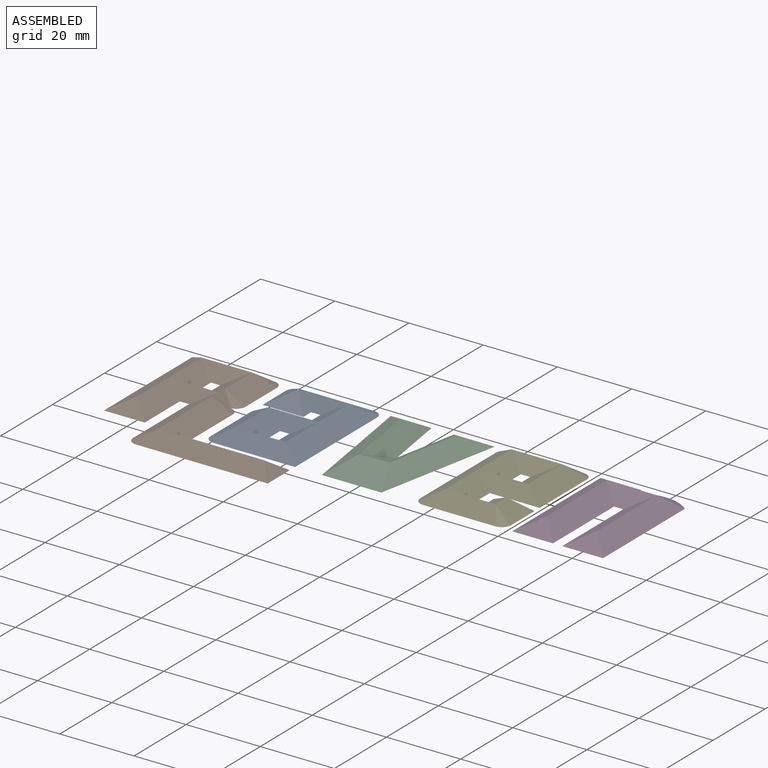
[diagram: assembled view]
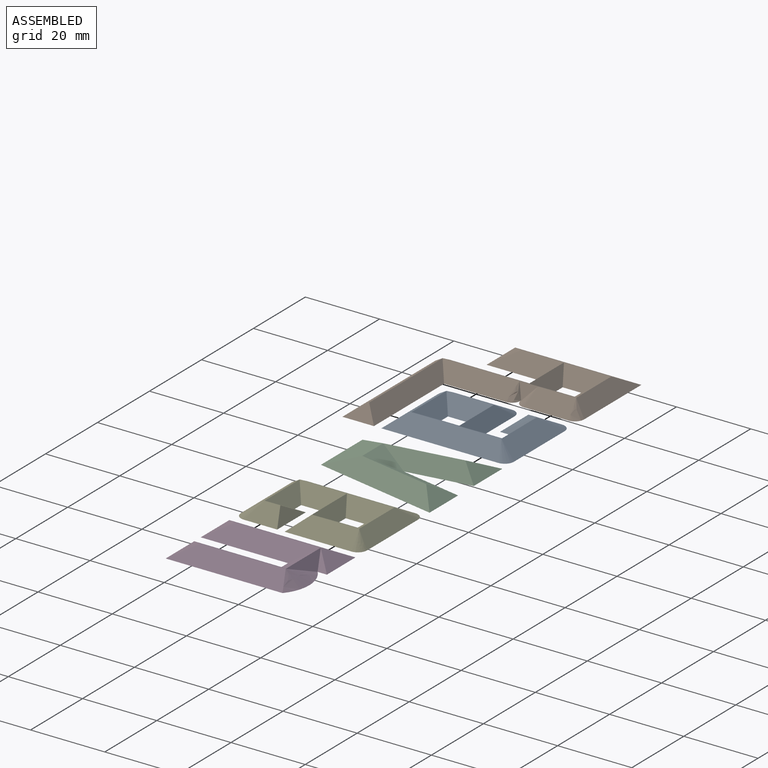
[diagram: assembled view, second angle]
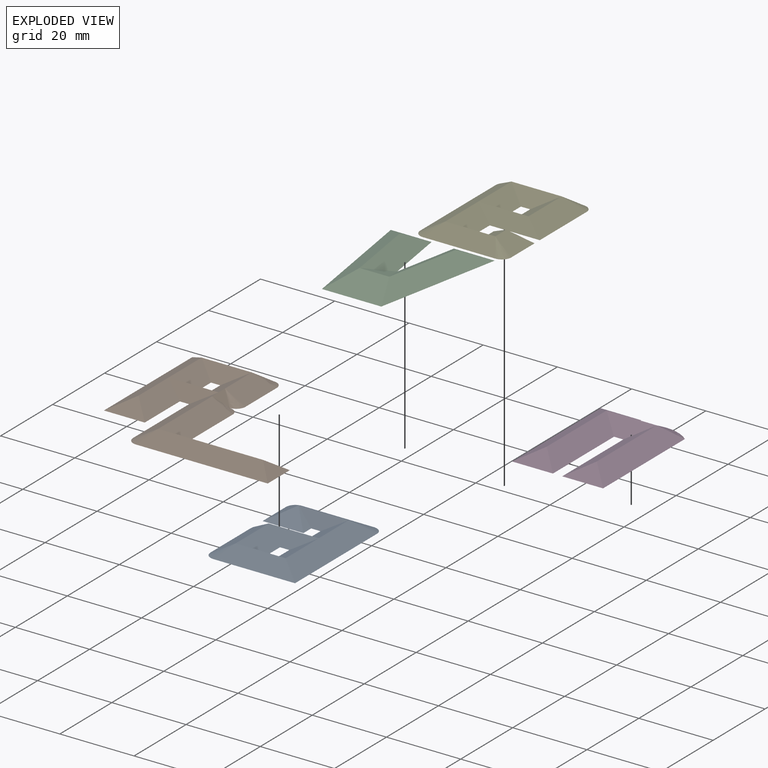
[diagram: exploded view]
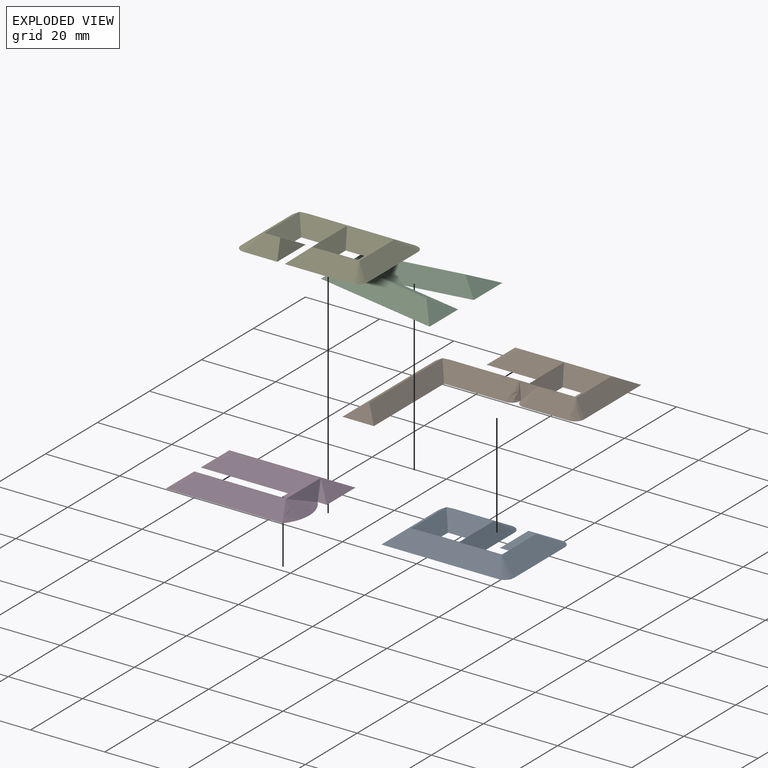
[diagram: exploded view, second angle]
ASSEMBLY  parts=5 mates=4
PART A: 19 faces, bbox 24.5x34x3 mm
  f0: plane 11.5x5.5mm, normal (-0.48,0,0.88), area 51.7mm2, adj f1,f2,f8,f18
  f1: plane 16.5x3.5mm, normal (0,0.65,0.76), area 56.5mm2, adj f0,f12,f13,f18
  f2: plane 13.5x3mm, normal (0,-0.71,0.71), area 33.9mm2, adj f0,f6,f17,f18
  f3: plane 11x6mm, normal (0,-0.45,0.89), area 36.9mm2, adj f4,f6,f18
  f4: plane 9x5.5mm, normal (-0.48,0,0.88), area 28.2mm2, adj f3,f5,f18
  f5: bspline ~5.5x5.5mm, area 13.7mm2, adj f4,f17,f18
  f6: plane 6x5.5mm, normal (0.48,0,0.88), area 9.4mm2, adj f2,f3,f18
  f7: plane 22x4.25mm, normal (0,-0.58,0.82), area 92.3mm2, adj f8,f9,f15,f18
  f8: plane 31.5x5.5mm, normal (0.48,0,0.88), area 174.6mm2, adj f0,f7,f11,f14,f18
  f9: plane 13.5x4.25mm, normal (0,0.58,0.82), area 41.6mm2, adj f7,f10,f11,f18
  f10: plane 12.75x5.5mm, normal (0.48,0,0.88), area 55.6mm2, adj f9,f12,f16,f18
  f11: plane 12.75x5.5mm, normal (-0.48,0,0.88), area 55.6mm2, adj f8,f9,f12,f18
  f12: plane 13.5x3.5mm, normal (0,-0.65,0.76), area 36.9mm2, adj f1,f10,f11,f18
  f13: bspline ~5.5x3.5mm, area 11.5mm2, adj f1,f16,f18
  f14: bspline ~5.5x5.5mm, area 13.7mm2, adj f8,f17,f18
  f15: bspline ~5.5x4.25mm, area 12.4mm2, adj f7,f16,f18
  f16: plane 15.5x5.5mm, normal (-0.48,0,0.88), area 88.5mm2, adj f10,f13,f15,f18
  f17: plane 19.5x5.5mm, normal (0,0.48,0.88), area 103.4mm2, adj f2,f5,f14,f18
  f18: plane 34x24.5mm, normal (0,0,-1), area 780.6mm2, adj f0,f1,f2,f3,f4,f5,f6,f7
PART B: 21 faces, bbox 52.1x45.1x3.6 mm
  f0: plane 32.5x4.25mm, normal (0,0.58,0.82), area 143.7mm2, adj f6,f14,f16,f19
  f1: plane 13.5x3.5mm, normal (0,-0.65,0.76), area 36.9mm2, adj f2,f5,f6,f13
  f2: plane 13.5x3.5mm, normal (0,0.65,0.76), area 36.9mm2, adj f1,f4,f6,f12
  f3: plane 13.5x4.25mm, normal (0,-0.58,0.82), area 41.6mm2, adj f4,f6,f8,f12
  f4: plane 12.75x5.5mm, normal (0.48,0,0.88), area 55.6mm2, adj f2,f3,f6,f7
  f5: plane 17x5.5mm, normal (0.48,0,0.88), area 78.3mm2, adj f1,f6,f7,f20
  f6: plane 51.5x44.5mm, normal (0,0,-1), area 1126.4mm2, adj f0,f1,f2,f3,f4,f5,f7,f8
  f7: plane 34x5.5mm, normal (-0.48,0,0.88), area 182.5mm2, adj f4,f5,f6,f8,f20
  f8: plane 22x4.25mm, normal (0,0.58,0.82), area 92.3mm2, adj f3,f6,f7,f10
  f9: plane 12.23x5.73mm, normal (0.48,0,0.88), area 69.7mm2, adj f6,f10,f11,f12
  f10: bspline ~5.5x4.25mm, area 11.9mm2, adj f6,f8,f9
  f11: bspline ~5.5x3mm, area 10.5mm2, adj f6,f9,f15
  f12: plane 12.75x5.5mm, normal (-0.48,0,0.88), area 55.6mm2, adj f2,f3,f6,f9,f15
  f13: plane 25.63x6.14mm, normal (-0.48,0,0.88), area 140.2mm2, adj f1,f6,f15,f16,f18
  f14: plane 35.5x4.25mm, normal (0,-0.58,0.82), area 165.8mm2, adj f0,f6,f18,f19
  f15: plane 5x3mm, normal (0.71,0,0.71), area 10.6mm2, adj f11,f12,f13,f17
  f16: plane 21.15x5.9mm, normal (0.48,0,0.88), area 116.7mm2, adj f0,f6,f13,f17
  f17: bspline ~5.5x3mm, area 9.7mm2, adj f6,f15,f16
  f18: bspline ~5.5x4.25mm, area 11mm2, adj f6,f13,f14
  f19: plane 8.5x4.25mm, normal (0.58,0,0.82), area 22.1mm2, adj f0,f6,f14
  f20: plane 11x5.5mm, normal (0,-0.48,0.88), area 34.5mm2, adj f5,f6,f7
PART C: 9 faces, bbox 28x34x3 mm
  f0: plane 34x28mm, normal (0,0,-1), area 697mm2, adj f1,f2,f3,f4,f5,f6,f7
  f1: plane 34x9.44mm, normal (-0.48,-0.07,0.88), area 169.6mm2, adj f0,f2,f6,f7
  f2: plane 16x8.5mm, normal (0,-0.33,0.94), area 108.2mm2, adj f0,f1,f3,f8
  f3: plane 34x10.56mm, normal (0.48,-0.09,0.87), area 169.9mm2, adj f0,f2,f4,f5
  f4: plane 11x5.5mm, normal (0,0.48,0.88), area 34.5mm2, adj f0,f3,f5
  f5: plane 25.5x7.78mm, normal (-0.48,0.09,0.87), area 116.4mm2, adj f0,f3,f4,f8
  f6: plane 25.5x7.28mm, normal (0.48,0.07,0.88), area 116.2mm2, adj f0,f1,f7,f8
  f7: plane 11x5.5mm, normal (0,0.48,0.88), area 34.5mm2, adj f0,f1,f6
  f8: plane 8.5x8mm, normal (0,0.33,0.94), area 36.1mm2, adj f2,f5,f6
PART D: 12 faces, bbox 24.5x34x3 mm
  f0: plane 34x24.5mm, normal (0,0,-1), area 763.6mm2, adj f1,f2,f3,f4,f5,f6,f7,f8
  f1: plane 34x5.5mm, normal (-0.48,0,0.88), area 178.6mm2, adj f0,f2,f3,f7
  f2: plane 11x5.5mm, normal (0,-0.48,0.88), area 34.5mm2, adj f0,f1,f3
  f3: plane 28.5x5.5mm, normal (0.48,0,0.88), area 145.7mm2, adj f0,f1,f2,f9
  f4: plane 11x5.5mm, normal (0,-0.48,0.88), area 34.5mm2, adj f0,f5,f6
  f5: plane 31.5x5.5mm, normal (0.48,0,0.88), area 170.7mm2, adj f0,f4,f6,f10
  f6: plane 28.5x5.5mm, normal (-0.48,0,0.88), area 145.7mm2, adj f0,f4,f5,f9
  f7: plane 11x5.5mm, normal (0,0.48,0.88), area 34.5mm2, adj f0,f1,f8
  f8: plane 5.5x5.5mm, normal (0.48,0,0.88), area 7.8mm2, adj f0,f7,f11
  f9: plane 13.5x5mm, normal (0,-0.51,0.86), area 46.6mm2, adj f0,f3,f6,f11
  f10: bspline ~13.5x5.5mm, area 48.7mm2, adj f0,f5,f11
  f11: plane 13.5x3mm, normal (0,0.71,0.71), area 28.6mm2, adj f8,f9,f10
PART E: 19 faces, bbox 24.5x34x3 mm
  f0: plane 12.75x5.5mm, normal (0.48,0,0.88), area 55.6mm2, adj f2,f3,f15,f17
  f1: plane 12.75x5.5mm, normal (0.48,0,0.88), area 55.6mm2, adj f2,f3,f4,f18
  f2: plane 29x5.5mm, normal (-0.48,0,0.88), area 170.7mm2, adj f0,f1,f3,f10,f16
  f3: plane 34x24.5mm, normal (0,0,-1), area 780.6mm2, adj f0,f1,f2,f4,f5,f6,f7,f8
  f4: plane 13.5x4.25mm, normal (0,0.58,0.82), area 41.6mm2, adj f1,f3,f6,f8
  f5: plane 9x5.5mm, normal (0.48,0,0.88), area 41.5mm2, adj f3,f6,f7,f9
  f6: plane 7.25x5.5mm, normal (-0.48,0,0.88), area 22.7mm2, adj f3,f4,f5,f7
  f7: plane 11x3mm, normal (0,0.71,0.71), area 23.3mm2, adj f3,f5,f6
  f8: plane 19.5x4.25mm, normal (0,-0.58,0.82), area 85.8mm2, adj f3,f4,f9,f10
  f9: bspline ~5.5x4.25mm, area 12.4mm2, adj f3,f5,f8
  f10: bspline ~5.5x4.25mm, area 12.4mm2, adj f2,f3,f8
  f11: plane 18x5.5mm, normal (0.48,0,0.88), area 96.3mm2, adj f3,f12,f14,f18
  f12: bspline ~5.5x4.25mm, area 12.4mm2, adj f3,f11,f13
  f13: plane 19.5x4.25mm, normal (0,0.58,0.82), area 85.8mm2, adj f3,f12,f15,f16
  f14: plane 12.75x5.5mm, normal (-0.48,0,0.88), area 55.6mm2, adj f3,f11,f15,f17
  f15: plane 13.5x4.25mm, normal (0,-0.58,0.82), area 41.6mm2, adj f0,f3,f13,f14
  f16: bspline ~5.5x4.25mm, area 12.4mm2, adj f2,f3,f13
  f17: plane 13.5x3.5mm, normal (0,0.65,0.76), area 36.9mm2, adj f0,f3,f14,f18
  f18: plane 19x3.5mm, normal (0,-0.65,0.76), area 62.2mm2, adj f1,f3,f11,f17
PLACE A t=(-24.5,13,0)mm
PLACE B t=(-51.5,10.5,0)mm
PLACE C t=(7.25,10.5,0)mm
PLACE D t=(58.5,10.5,0)mm
PLACE E t=(32,13,0)mm
MATE fastened B.f6 <-> A.f18  axis (0,0,1) through (0,8.5,0)mm
MATE fastened D.f0 <-> E.f3  axis (0,0,1) through (58.5,44.5,0)mm
MATE fastened C.f0 <-> E.f3  axis (0,0,1) through (30,44.5,0)mm
MATE fastened C.f0 <-> A.f18  axis (0,0,1) through (2,44.5,0)mm
